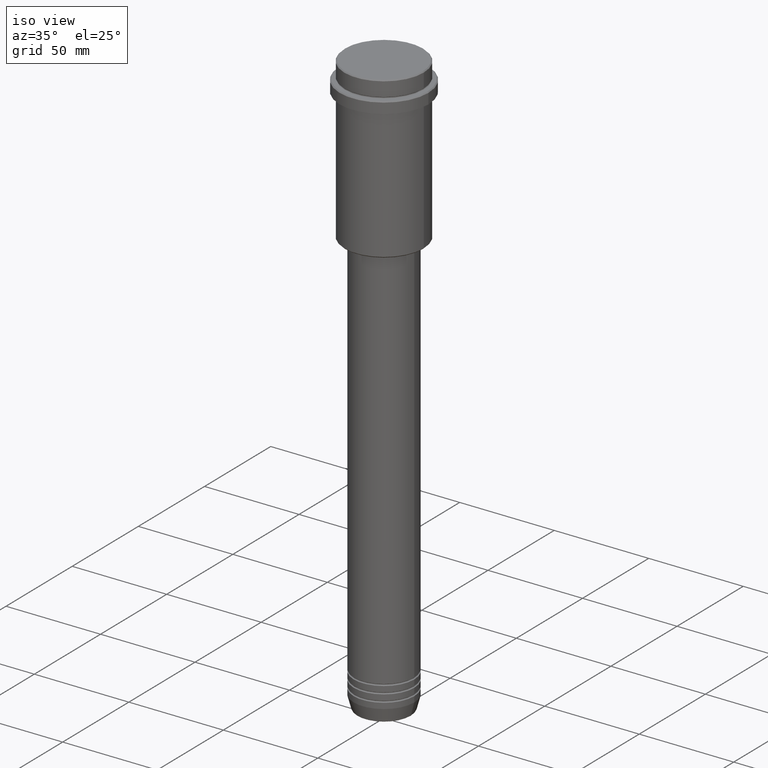
[diagram: clean part render]
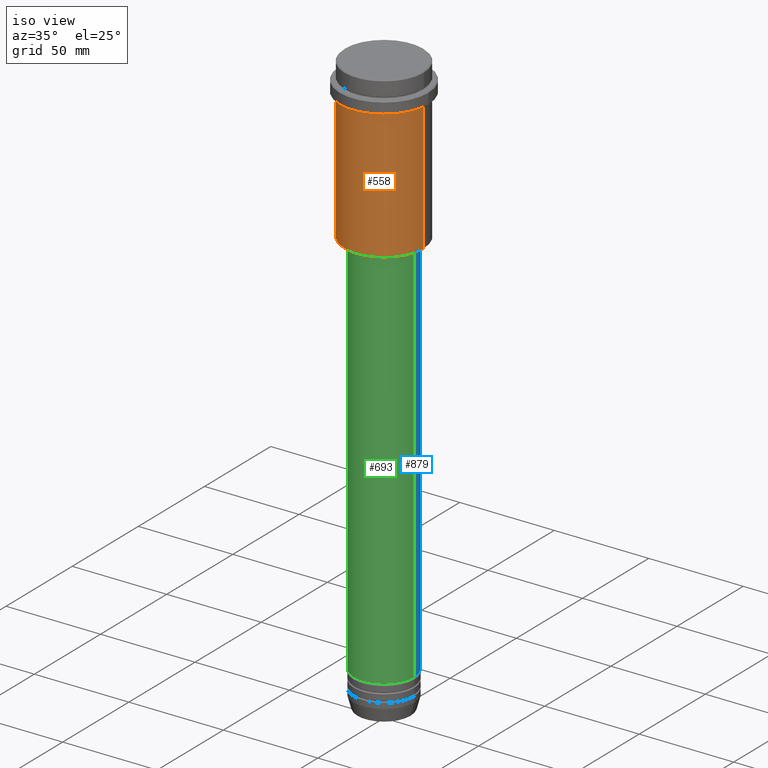
[diagram: same view with three faces highlighted in distinct colors, each labeled with its STEP entity id]
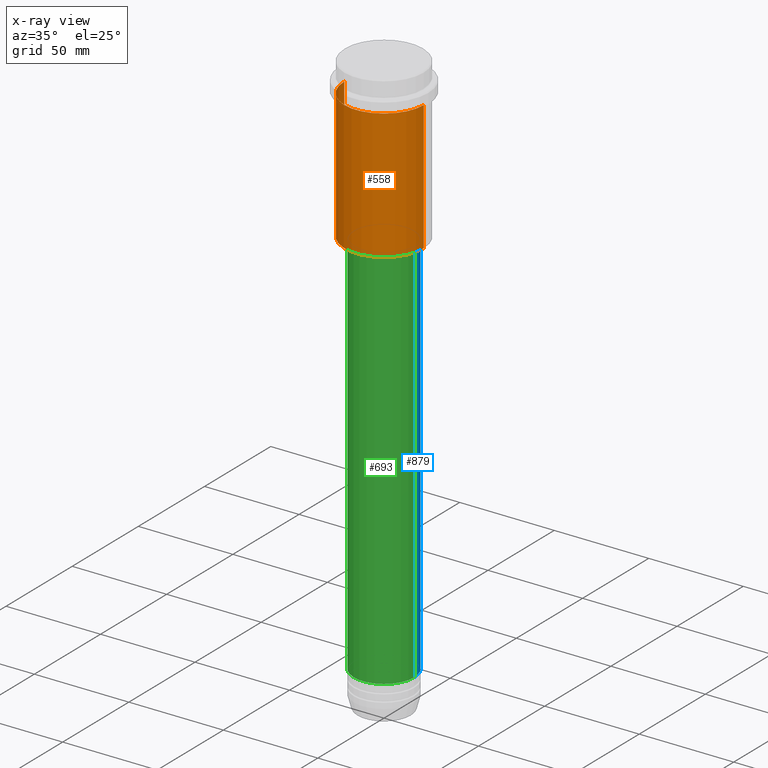
[diagram: x-ray of the same camera — body ghosted, the three highlighted faces saturated]
A machine part, iso view with three faces highlighted in distinct colors.
The next image is the same camera in x-ray (body ghosted, the three faces saturated) — at least one of them is partly hidden behind the body in this view.
Their STEP definitions:

[orange] entity #558 — the highlighted cylindrical surface (partial cylindrical patch) has radius 21 mm, axis along (-0, -0, 1).
#31 = ORIENTED_EDGE ( 'NONE', *, *, #76, .T. ) ;
#33 = LINE ( 'NONE', #921, #900 ) ;
#76 = EDGE_CURVE ( 'NONE', #399, #826, #33, .T. ) ;
#79 = EDGE_CURVE ( 'NONE', #159, #399, #1101, .T. ) ;
#81 = DIRECTION ( 'NONE',  ( 1.000000000000000000, 0.000000000000000000, 0.000000000000000000 ) ) ;
#124 = CIRCLE ( 'NONE', #1174, 21.00000000000000000 ) ;
#159 = VERTEX_POINT ( 'NONE', #289 ) ;
#209 = CARTESIAN_POINT ( 'NONE',  ( -21.00000000000000000, 2.571758278209441661E-15, -16.00000000000000355 ) ) ;
#220 = DIRECTION ( 'NONE',  ( -0.000000000000000000, -0.000000000000000000, 1.000000000000000000 ) ) ;
#252 = DIRECTION ( 'NONE',  ( -1.000000000000000000, 0.000000000000000000, 0.000000000000000000 ) ) ;
#289 = CARTESIAN_POINT ( 'NONE',  ( -21.00000000000000000, 2.571758278209441661E-15, -84.50000000000008527 ) ) ;
#296 = DIRECTION ( 'NONE',  ( -0.000000000000000000, -0.000000000000000000, 1.000000000000000000 ) ) ;
#299 = VERTEX_POINT ( 'NONE', #209 ) ;
#350 = DIRECTION ( 'NONE',  ( 1.000000000000000000, 0.000000000000000000, 0.000000000000000000 ) ) ;
#370 = DIRECTION ( 'NONE',  ( -0.000000000000000000, -0.000000000000000000, 1.000000000000000000 ) ) ;
#377 = DIRECTION ( 'NONE',  ( -0.000000000000000000, -0.000000000000000000, 1.000000000000000000 ) ) ;
#399 = VERTEX_POINT ( 'NONE', #590 ) ;
#450 = VECTOR ( 'NONE', #220, 1000.000000000000000 ) ;
#471 = CARTESIAN_POINT ( 'NONE',  ( 0.000000000000000000, 0.000000000000000000, -16.00000000000000355 ) ) ;
#483 = ORIENTED_EDGE ( 'NONE', *, *, #1278, .F. ) ;
#486 = ORIENTED_EDGE ( 'NONE', *, *, #79, .T. ) ;
#558 = ADVANCED_FACE ( 'NONE', ( #870 ), #1292, .T. ) ;
#590 = CARTESIAN_POINT ( 'NONE',  ( 21.00000000000000000, 0.000000000000000000, -84.50000000000008527 ) ) ;
#654 = CARTESIAN_POINT ( 'NONE',  ( 21.00000000000000000, 0.000000000000000000, -16.00000000000000355 ) ) ;
#779 = LINE ( 'NONE', #928, #450 ) ;
#817 = CARTESIAN_POINT ( 'NONE',  ( 0.000000000000000000, 0.000000000000000000, -84.50000000000008527 ) ) ;
#826 = VERTEX_POINT ( 'NONE', #654 ) ;
#845 = EDGE_CURVE ( 'NONE', #299, #826, #124, .T. ) ;
#870 = FACE_OUTER_BOUND ( 'NONE', #1198, .T. ) ;
#900 = VECTOR ( 'NONE', #370, 1000.000000000000000 ) ;
#921 = CARTESIAN_POINT ( 'NONE',  ( 21.00000000000000000, 0.000000000000000000, 0.000000000000000000 ) ) ;
#928 = CARTESIAN_POINT ( 'NONE',  ( -21.00000000000000000, 2.571758278209441661E-15, 0.000000000000000000 ) ) ;
#959 = ORIENTED_EDGE ( 'NONE', *, *, #845, .F. ) ;
#963 = CARTESIAN_POINT ( 'NONE',  ( 0.000000000000000000, 0.000000000000000000, 0.000000000000000000 ) ) ;
#1101 = CIRCLE ( 'NONE', #1398, 21.00000000000000000 ) ;
#1174 = AXIS2_PLACEMENT_3D ( 'NONE', #471, #377, #350 ) ;
#1198 = EDGE_LOOP ( 'NONE', ( #483, #486, #31, #959 ) ) ;
#1212 = AXIS2_PLACEMENT_3D ( 'NONE', #963, #296, #81 ) ;
#1250 = DIRECTION ( 'NONE',  ( -0.000000000000000000, -0.000000000000000000, 1.000000000000000000 ) ) ;
#1278 = EDGE_CURVE ( 'NONE', #159, #299, #779, .T. ) ;
#1292 = CYLINDRICAL_SURFACE ( 'NONE', #1212, 21.00000000000000000 ) ;
#1398 = AXIS2_PLACEMENT_3D ( 'NONE', #817, #1250, #252 ) ;

[blue] entity #879 — the highlighted cylindrical surface (partial cylindrical patch) has radius 16 mm, axis along (-0, -0, 1).
#2 = VECTOR ( 'NONE', #1224, 1000.000000000000000 ) ;
#16 = AXIS2_PLACEMENT_3D ( 'NONE', #565, #778, #996 ) ;
#35 = EDGE_LOOP ( 'NONE', ( #933, #80, #305, #378 ) ) ;
#80 = ORIENTED_EDGE ( 'NONE', *, *, #1063, .T. ) ;
#169 = CARTESIAN_POINT ( 'NONE',  ( 0.000000000000000000, 0.000000000000000000, 0.000000000000000000 ) ) ;
#214 = LINE ( 'NONE', #662, #2 ) ;
#283 = VERTEX_POINT ( 'NONE', #877 ) ;
#305 = ORIENTED_EDGE ( 'NONE', *, *, #322, .F. ) ;
#322 = EDGE_CURVE ( 'NONE', #283, #501, #1086, .T. ) ;
#378 = ORIENTED_EDGE ( 'NONE', *, *, #545, .F. ) ;
#387 = CYLINDRICAL_SURFACE ( 'NONE', #884, 16.00000000000000000 ) ;
#487 = CARTESIAN_POINT ( 'NONE',  ( -16.00000000000000355, 1.959434878635765526E-15, -85.99999999999991473 ) ) ;
#501 = VERTEX_POINT ( 'NONE', #487 ) ;
#503 = LINE ( 'NONE', #955, #1401 ) ;
#537 = DIRECTION ( 'NONE',  ( 1.000000000000000000, 0.000000000000000000, 0.000000000000000000 ) ) ;
#545 = EDGE_CURVE ( 'NONE', #580, #283, #503, .T. ) ;
#565 = CARTESIAN_POINT ( 'NONE',  ( 0.000000000000000000, 0.000000000000000000, -85.99999999999991473 ) ) ;
#580 = VERTEX_POINT ( 'NONE', #1113 ) ;
#584 = CARTESIAN_POINT ( 'NONE',  ( -16.00000000000000000, 1.959434878635765131E-15, -290.9999999999998863 ) ) ;
#633 = DIRECTION ( 'NONE',  ( -0.000000000000000000, -0.000000000000000000, 1.000000000000000000 ) ) ;
#662 = CARTESIAN_POINT ( 'NONE',  ( -16.00000000000000000, 1.959434878635765131E-15, 0.000000000000000000 ) ) ;
#778 = DIRECTION ( 'NONE',  ( -0.000000000000000000, -0.000000000000000000, 1.000000000000000000 ) ) ;
#818 = DIRECTION ( 'NONE',  ( 1.000000000000000000, 0.000000000000000000, 0.000000000000000000 ) ) ;
#877 = CARTESIAN_POINT ( 'NONE',  ( 16.00000000000000355, 0.000000000000000000, -85.99999999999991473 ) ) ;
#879 = ADVANCED_FACE ( 'NONE', ( #1364 ), #387, .T. ) ;
#884 = AXIS2_PLACEMENT_3D ( 'NONE', #169, #1030, #818 ) ;
#901 = DIRECTION ( 'NONE',  ( -0.000000000000000000, -0.000000000000000000, 1.000000000000000000 ) ) ;
#933 = ORIENTED_EDGE ( 'NONE', *, *, #1376, .T. ) ;
#953 = VERTEX_POINT ( 'NONE', #584 ) ;
#955 = CARTESIAN_POINT ( 'NONE',  ( 16.00000000000000000, 0.000000000000000000, 0.000000000000000000 ) ) ;
#996 = DIRECTION ( 'NONE',  ( 1.000000000000000000, 0.000000000000000000, 0.000000000000000000 ) ) ;
#1020 = CIRCLE ( 'NONE', #1359, 16.00000000000000000 ) ;
#1030 = DIRECTION ( 'NONE',  ( -0.000000000000000000, -0.000000000000000000, 1.000000000000000000 ) ) ;
#1063 = EDGE_CURVE ( 'NONE', #953, #501, #214, .T. ) ;
#1086 = CIRCLE ( 'NONE', #16, 16.00000000000000355 ) ;
#1113 = CARTESIAN_POINT ( 'NONE',  ( 16.00000000000000000, 0.000000000000000000, -290.9999999999998863 ) ) ;
#1224 = DIRECTION ( 'NONE',  ( -0.000000000000000000, -0.000000000000000000, 1.000000000000000000 ) ) ;
#1318 = CARTESIAN_POINT ( 'NONE',  ( 0.000000000000000000, 0.000000000000000000, -290.9999999999998863 ) ) ;
#1359 = AXIS2_PLACEMENT_3D ( 'NONE', #1318, #901, #537 ) ;
#1364 = FACE_OUTER_BOUND ( 'NONE', #35, .T. ) ;
#1376 = EDGE_CURVE ( 'NONE', #580, #953, #1020, .T. ) ;
#1401 = VECTOR ( 'NONE', #633, 1000.000000000000000 ) ;

[green] entity #693 — the highlighted cylindrical surface (partial cylindrical patch) has radius 16 mm, axis along (-0, -0, 1).
#2 = VECTOR ( 'NONE', #1224, 1000.000000000000000 ) ;
#6 = DIRECTION ( 'NONE',  ( 1.000000000000000000, 0.000000000000000000, 0.000000000000000000 ) ) ;
#126 = CARTESIAN_POINT ( 'NONE',  ( 0.000000000000000000, 0.000000000000000000, -85.99999999999991473 ) ) ;
#138 = EDGE_LOOP ( 'NONE', ( #1317, #1139, #1160, #1031 ) ) ;
#214 = LINE ( 'NONE', #662, #2 ) ;
#283 = VERTEX_POINT ( 'NONE', #877 ) ;
#304 = DIRECTION ( 'NONE',  ( -0.000000000000000000, -0.000000000000000000, 1.000000000000000000 ) ) ;
#321 = DIRECTION ( 'NONE',  ( -0.000000000000000000, -0.000000000000000000, 1.000000000000000000 ) ) ;
#419 = FACE_OUTER_BOUND ( 'NONE', #138, .T. ) ;
#487 = CARTESIAN_POINT ( 'NONE',  ( -16.00000000000000355, 1.959434878635765526E-15, -85.99999999999991473 ) ) ;
#501 = VERTEX_POINT ( 'NONE', #487 ) ;
#503 = LINE ( 'NONE', #955, #1401 ) ;
#522 = EDGE_CURVE ( 'NONE', #501, #283, #1126, .T. ) ;
#525 = AXIS2_PLACEMENT_3D ( 'NONE', #126, #944, #1297 ) ;
#545 = EDGE_CURVE ( 'NONE', #580, #283, #503, .T. ) ;
#580 = VERTEX_POINT ( 'NONE', #1113 ) ;
#584 = CARTESIAN_POINT ( 'NONE',  ( -16.00000000000000000, 1.959434878635765131E-15, -290.9999999999998863 ) ) ;
#608 = DIRECTION ( 'NONE',  ( 1.000000000000000000, 0.000000000000000000, 0.000000000000000000 ) ) ;
#627 = CIRCLE ( 'NONE', #811, 16.00000000000000000 ) ;
#633 = DIRECTION ( 'NONE',  ( -0.000000000000000000, -0.000000000000000000, 1.000000000000000000 ) ) ;
#662 = CARTESIAN_POINT ( 'NONE',  ( -16.00000000000000000, 1.959434878635765131E-15, 0.000000000000000000 ) ) ;
#693 = ADVANCED_FACE ( 'NONE', ( #419 ), #1227, .T. ) ;
#811 = AXIS2_PLACEMENT_3D ( 'NONE', #1073, #321, #6 ) ;
#874 = CARTESIAN_POINT ( 'NONE',  ( 0.000000000000000000, 0.000000000000000000, 0.000000000000000000 ) ) ;
#877 = CARTESIAN_POINT ( 'NONE',  ( 16.00000000000000355, 0.000000000000000000, -85.99999999999991473 ) ) ;
#944 = DIRECTION ( 'NONE',  ( -0.000000000000000000, -0.000000000000000000, 1.000000000000000000 ) ) ;
#953 = VERTEX_POINT ( 'NONE', #584 ) ;
#955 = CARTESIAN_POINT ( 'NONE',  ( 16.00000000000000000, 0.000000000000000000, 0.000000000000000000 ) ) ;
#1031 = ORIENTED_EDGE ( 'NONE', *, *, #522, .F. ) ;
#1063 = EDGE_CURVE ( 'NONE', #953, #501, #214, .T. ) ;
#1073 = CARTESIAN_POINT ( 'NONE',  ( 0.000000000000000000, 0.000000000000000000, -290.9999999999998863 ) ) ;
#1113 = CARTESIAN_POINT ( 'NONE',  ( 16.00000000000000000, 0.000000000000000000, -290.9999999999998863 ) ) ;
#1126 = CIRCLE ( 'NONE', #525, 16.00000000000000355 ) ;
#1139 = ORIENTED_EDGE ( 'NONE', *, *, #1218, .T. ) ;
#1160 = ORIENTED_EDGE ( 'NONE', *, *, #545, .T. ) ;
#1192 = AXIS2_PLACEMENT_3D ( 'NONE', #874, #304, #608 ) ;
#1218 = EDGE_CURVE ( 'NONE', #953, #580, #627, .T. ) ;
#1224 = DIRECTION ( 'NONE',  ( -0.000000000000000000, -0.000000000000000000, 1.000000000000000000 ) ) ;
#1227 = CYLINDRICAL_SURFACE ( 'NONE', #1192, 16.00000000000000000 ) ;
#1297 = DIRECTION ( 'NONE',  ( 1.000000000000000000, 0.000000000000000000, 0.000000000000000000 ) ) ;
#1317 = ORIENTED_EDGE ( 'NONE', *, *, #1063, .F. ) ;
#1401 = VECTOR ( 'NONE', #633, 1000.000000000000000 ) ;